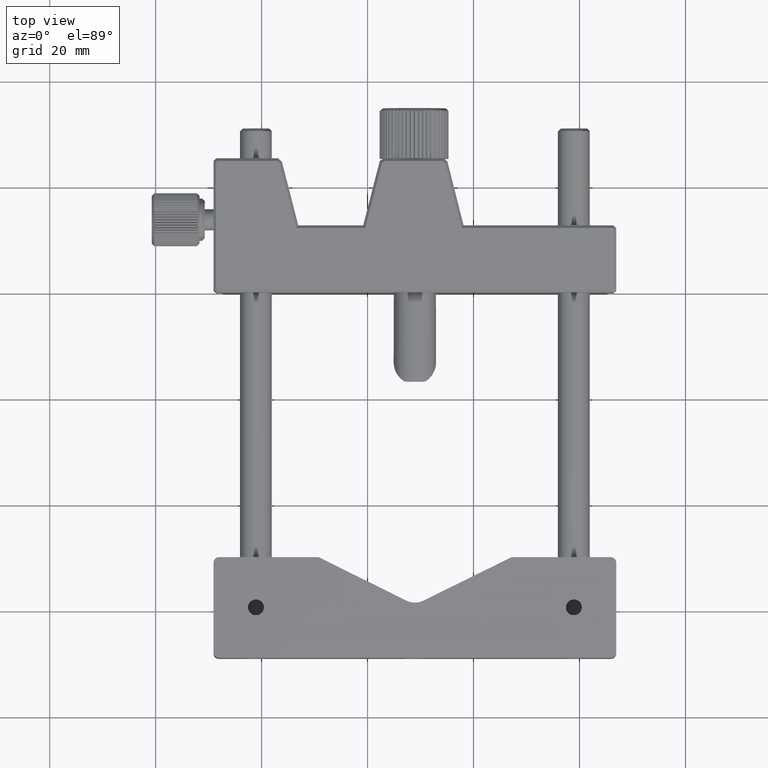
[diagram: clean part render]
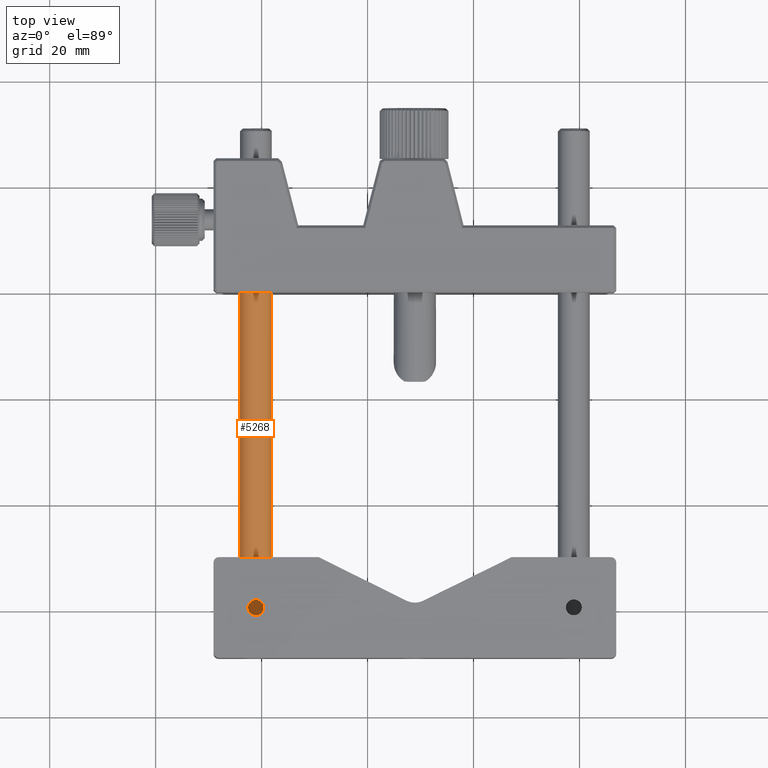
[diagram: same view with one face highlighted and labeled with its STEP entity id]
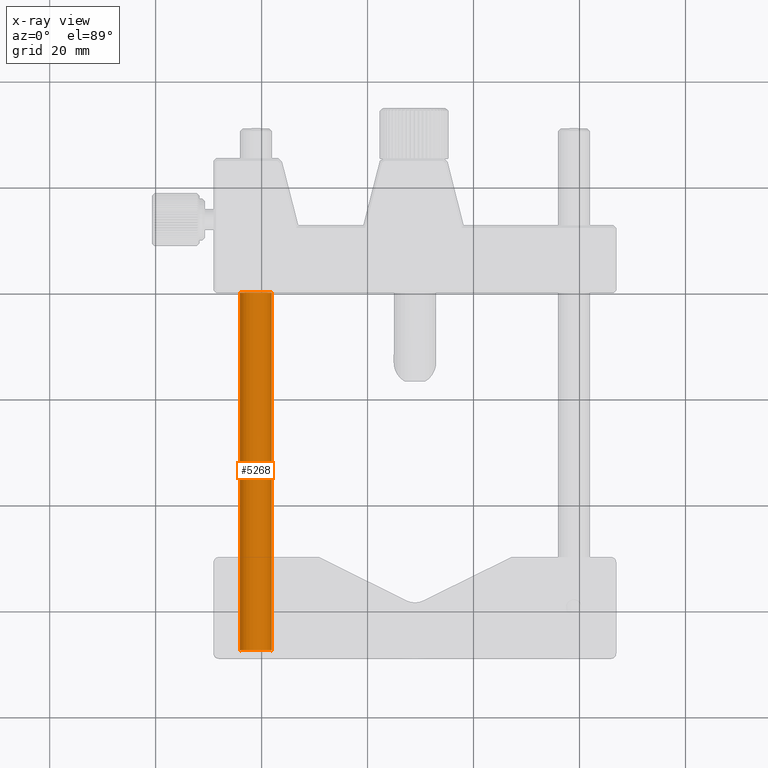
[diagram: x-ray of the same camera — body ghosted, the highlighted face saturated]
A machine part, top view. The second image highlights one B-rep face of the part: STEP entity #5268.
The next image is the same camera in x-ray: the body ghosted, the highlighted face saturated — about 0% of this face is hidden behind the body in this view.
In plain terms, the highlighted cylindrical surface (edge-blend (fillet) strip) has radius 3 mm, axis along (-0, 1, 0).
Its self-contained STEP definition (entity closure, byte-faithful):
#155 = EDGE_CURVE ( 'NONE', #4091, #6559, #13275, .T. ) ;
#799 = VECTOR ( 'NONE', #14665, 1000.000000000000000 ) ;
#863 = DIRECTION ( 'NONE',  ( -0.9988846338614685294, 0.000000000000000000, -0.04721745689297628806 ) ) ;
#947 = CARTESIAN_POINT ( 'NONE',  ( -56.33676122642620498, -23.51113522487050389, -8.681067806521270601E-16 ) ) ;
#1174 = ORIENTED_EDGE ( 'NONE', *, *, #15662, .T. ) ;
#2185 = CARTESIAN_POINT ( 'NONE',  ( -59.33341512801060702, 44.48886477512959203, -0.1416523706789287740 ) ) ;
#2280 = CARTESIAN_POINT ( 'NONE',  ( -59.33341512801060702, -23.51113522487050389, -0.1416523706789297732 ) ) ;
#2461 = AXIS2_PLACEMENT_3D ( 'NONE', #12380, #14660, #15802 ) ;
#2527 = AXIS2_PLACEMENT_3D ( 'NONE', #5613, #10588, #2934 ) ;
#2546 = VERTEX_POINT ( 'NONE', #12260 ) ;
#2934 = DIRECTION ( 'NONE',  ( 0.000000000000000000, 0.000000000000000000, -1.000000000000000000 ) ) ;
#4091 = VERTEX_POINT ( 'NONE', #12403 ) ;
#4531 = CARTESIAN_POINT ( 'NONE',  ( -53.34010732484179584, -23.51113522487050389, 0.1416523706789284132 ) ) ;
#4534 = DIRECTION ( 'NONE',  ( -1.310547695170699904E-18, 1.000000000000000000, 2.772461798643169572E-17 ) ) ;
#4806 = EDGE_LOOP ( 'NONE', ( #6490, #1174, #8401, #11502 ) ) ;
#5268 = ADVANCED_FACE ( 'NONE', ( #15698 ), #14315, .T. ) ;
#5439 = LINE ( 'NONE', #4531, #6723 ) ;
#5613 = CARTESIAN_POINT ( 'NONE',  ( -56.33676122642620498, 44.48886477512959203, 1.017167242425230011E-15 ) ) ;
#5905 = CIRCLE ( 'NONE', #2527, 3.000000000000000000 ) ;
#6490 = ORIENTED_EDGE ( 'NONE', *, *, #7679, .F. ) ;
#6559 = VERTEX_POINT ( 'NONE', #2185 ) ;
#6723 = VECTOR ( 'NONE', #12926, 1000.000000000000000 ) ;
#7679 = EDGE_CURVE ( 'NONE', #2546, #4091, #13369, .T. ) ;
#8401 = ORIENTED_EDGE ( 'NONE', *, *, #14216, .F. ) ;
#9996 = AXIS2_PLACEMENT_3D ( 'NONE', #947, #4534, #863 ) ;
#10588 = DIRECTION ( 'NONE',  ( 1.435192739162169912E-32, 1.000000000000000000, 1.378887143529729752E-16 ) ) ;
#11502 = ORIENTED_EDGE ( 'NONE', *, *, #155, .F. ) ;
#12260 = CARTESIAN_POINT ( 'NONE',  ( -53.34010732484169637, -23.01113522487040086, 0.1416523706789337145 ) ) ;
#12380 = CARTESIAN_POINT ( 'NONE',  ( -56.33676122642620498, -23.01113522487040086, -1.266348137463069968E-15 ) ) ;
#12403 = CARTESIAN_POINT ( 'NONE',  ( -59.33341512801071360, -23.01113522487040086, -0.1416523706789350745 ) ) ;
#12926 = DIRECTION ( 'NONE',  ( -1.310547695170699904E-18, 1.000000000000000000, 2.772461798643169572E-17 ) ) ;
#13275 = LINE ( 'NONE', #2280, #799 ) ;
#13369 = CIRCLE ( 'NONE', #2461, 3.000000000000000888 ) ;
#14216 = EDGE_CURVE ( 'NONE', #6559, #15343, #5905, .T. ) ;
#14315 = CYLINDRICAL_SURFACE ( 'NONE', #9996, 3.000000000000000888 ) ;
#14660 = DIRECTION ( 'NONE',  ( 0.000000000000000000, -1.000000000000000000, 0.000000000000000000 ) ) ;
#14665 = DIRECTION ( 'NONE',  ( -1.310547695170699904E-18, 1.000000000000000000, 2.772461798643169572E-17 ) ) ;
#14821 = CARTESIAN_POINT ( 'NONE',  ( -53.34010732484179584, 44.48886477512959203, 0.1416523706789293291 ) ) ;
#15343 = VERTEX_POINT ( 'NONE', #14821 ) ;
#15662 = EDGE_CURVE ( 'NONE', #2546, #15343, #5439, .T. ) ;
#15698 = FACE_OUTER_BOUND ( 'NONE', #4806, .T. ) ;
#15802 = DIRECTION ( 'NONE',  ( -0.9988846338614685294, 0.000000000000000000, -0.04721745689297599663 ) ) ;